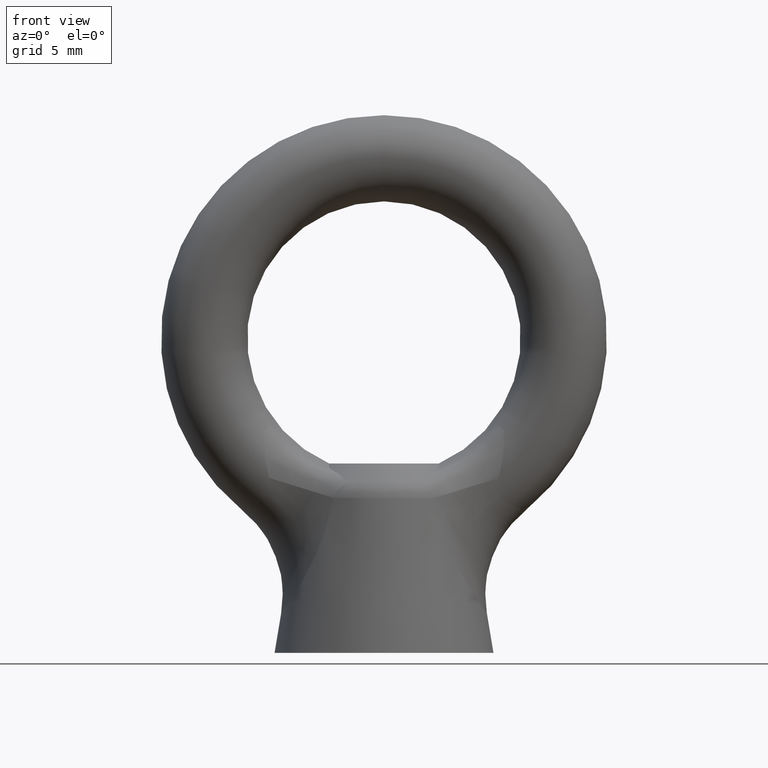
[diagram: clean part render]
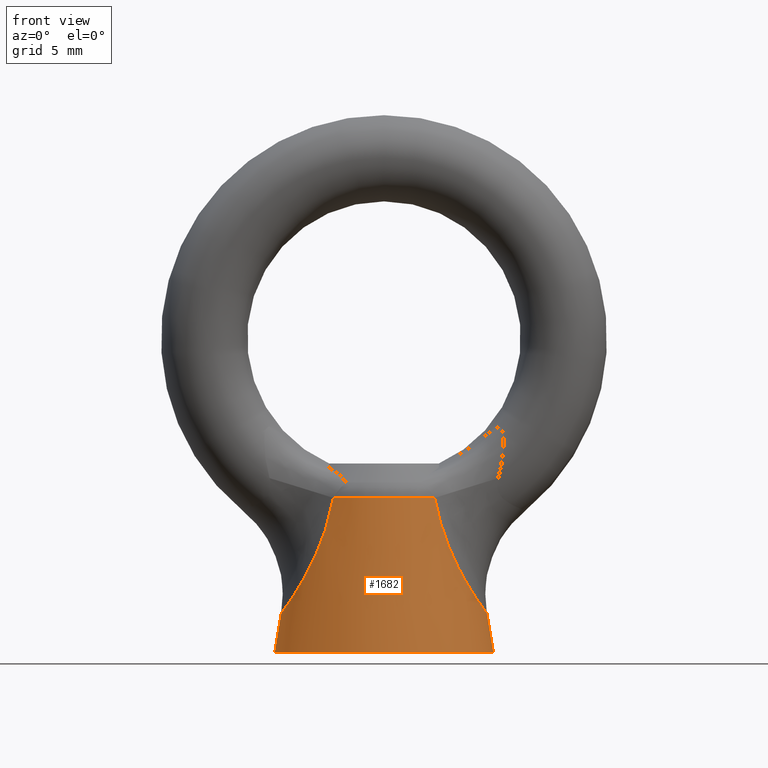
[diagram: same view with one face highlighted and labeled with its STEP entity id]
A machine part, front view. The second image highlights one B-rep face of the part: STEP entity #1682.
In plain terms, the highlighted conical surface has half-angle 9.462 deg.
Its self-contained STEP definition (entity closure, byte-faithful):
#94 = CARTESIAN_POINT ( 'NONE',  ( 3.700336161198615000, -4.866101749965079800, -11.67933981912971900 ) ) ;
#95 = CARTESIAN_POINT ( 'NONE',  ( 3.700336161198615000, -4.866101749965079800, -11.67933981912971900 ) ) ;
#96 = CARTESIAN_POINT ( 'NONE',  ( 3.791080510761447800, -4.897659638866545400, -12.15962412997844300 ) ) ;
#97 = CARTESIAN_POINT ( 'NONE',  ( 3.897948798332467200, -4.915433139214664000, -12.63581857763769800 ) ) ;
#98 = CARTESIAN_POINT ( 'NONE',  ( 4.148983107610034100, -4.913016417030344300, -13.57877150178362100 ) ) ;
#99 = CARTESIAN_POINT ( 'NONE',  ( 4.293832980109333300, -4.892688106765014300, -14.04741552049485500 ) ) ;
#100 = CARTESIAN_POINT ( 'NONE',  ( 4.618975746002725200, -4.801536893255710800, -14.96517377195020500 ) ) ;
#101 = CARTESIAN_POINT ( 'NONE',  ( 4.798601422195375200, -4.731125378629794700, -15.41306983158899500 ) ) ;
#102 = CARTESIAN_POINT ( 'NONE',  ( 5.187444715281709600, -4.525712549269332600, -16.28621154208027700 ) ) ;
#103 = CARTESIAN_POINT ( 'NONE',  ( 5.396503009544639800, -4.390439604083895600, -16.71053500868491400 ) ) ;
#104 = CARTESIAN_POINT ( 'NONE',  ( 5.717409407806754600, -4.130460136556911800, -17.31241303120011600 ) ) ;
#244 = CARTESIAN_POINT ( 'NONE',  ( -6.472111483679706000, -3.304312794107324700, -18.58721283963956600 ) ) ;
#245 = CARTESIAN_POINT ( 'NONE',  ( -6.677490107226547300, -2.998243480978921600, -18.90471114148681100 ) ) ;
#246 = CARTESIAN_POINT ( 'NONE',  ( -6.966462522931490000, -2.471127193186175100, -19.33403024834572600 ) ) ;
#247 = CARTESIAN_POINT ( 'NONE',  ( -6.778014815908657700, -2.830895693655485900, -19.05601187799507600 ) ) ;
#1655 = CARTESIAN_POINT ( 'NONE',  ( -7.210750658609040200, -1.874143635568104900, -19.68300334612416300 ) ) ;
#1656 = CARTESIAN_POINT ( 'NONE',  ( -7.280948999064633200, -1.657070340402333000, -19.78094130287158600 ) ) ;
#1657 = CARTESIAN_POINT ( 'NONE',  ( -7.053713821390386100, -2.280314914314785800, -19.45982852783784300 ) ) ;
#1658 = CARTESIAN_POINT ( 'NONE',  ( 7.440154740274011600, -0.9764553683088964500, -20.00018151817190700 ) ) ;
#1659 = CARTESIAN_POINT ( 'NONE',  ( 7.501573110524824500, -0.4946239260969532700, -20.08365726245855100 ) ) ;
#1660 = CARTESIAN_POINT ( 'NONE',  ( -7.441595080748321300, -0.9674330948542668700, -20.00214363067909300 ) ) ;
#1661 = CARTESIAN_POINT ( 'NONE',  ( -7.396325063362581000, -1.204143901561611600, -19.94042925631535500 ) ) ;
#1662 = CARTESIAN_POINT ( 'NONE',  ( 7.058717856527840300, -2.295126283549897600, -19.47015036336722100 ) ) ;
#1663 = CARTESIAN_POINT ( 'NONE',  ( 7.224805527430165200, -1.877313102086365600, -19.70332997826474800 ) ) ;
#1664 = CARTESIAN_POINT ( 'NONE',  ( -7.517523914658711200, -0.2469037410574205800, -20.10515167080067300 ) ) ;
#1665 = CARTESIAN_POINT ( 'NONE',  ( 7.517523914658711200, -0.2467236879976237300, -20.10515167080066900 ) ) ;
#1666 = CARTESIAN_POINT ( 'NONE',  ( -7.501905173004672600, -0.4896739786798432500, -20.08410394743090400 ) ) ;
#1667 = CARTESIAN_POINT ( 'NONE',  ( 7.395374059738717400, -1.207955613047939600, -19.93911587342264000 ) ) ;
#1668 = CARTESIAN_POINT ( 'NONE',  ( -7.517523914658708500, -1.503601632598788600E-015, -20.10515167080066900 ) ) ;
#1669 = CARTESIAN_POINT ( 'NONE',  ( 6.478098112501170300, -3.309688445053397200, -18.60200361946352400 ) ) ;
#1670 = CARTESIAN_POINT ( 'NONE',  ( 6.154707890606448300, -3.699359780974263800, -18.07402216976051100 ) ) ;
#1671 = CARTESIAN_POINT ( 'NONE',  ( 6.685026712302424700, -3.008295300323532700, -18.91881067202624700 ) ) ;
#1672 = CARTESIAN_POINT ( 'NONE',  ( 5.825879783987344000, -4.034098607246857400, -17.50794511143864100 ) ) ;
#1673 = CARTESIAN_POINT ( 'NONE',  ( 6.044247045159932200, -3.818924313034897500, -17.88831239793630300 ) ) ;
#1674 = B_SPLINE_CURVE_WITH_KNOTS ( 'NONE', 3,
 ( #1857, #1665, #1659, #1658, #1667, #1663, #1662, #1671, #1669, #1670, #1673, #1672, #104, #103, #102, #101, #100, #99, #98, #97, #96, #95 ),
 .UNSPECIFIED., .F., .F.,
 ( 4, 2, 2, 2, 2, 2, 2, 2, 2, 2, 4 ),
 ( 0.01175374713186020500, 0.01248782061828869100, 0.01322189410471717700, 0.01469004107757414800, 0.01615818805043112100, 0.01689226153685960100, 0.01762633502328808000, 0.01909448199614503400, 0.02056262896900198600, 0.02203077594185893700, 0.02349892291471588800 ),
 .UNSPECIFIED. ) ;
#1675 = DIRECTION ( 'NONE',  ( -1.000000000000000000, 0.0000000000000000000, 0.0000000000000000000 ) ) ;
#1676 = DIRECTION ( 'NONE',  ( 0.0000000000000000000, 0.0000000000000000000, -1.000000000000000000 ) ) ;
#1677 = AXIS2_PLACEMENT_3D ( 'NONE', #1679, #1676, #1675 ) ;
#1678 = CONICAL_SURFACE ( 'NONE', #1677, 8.000000000000000000, 0.1651491357972913500 ) ;
#1679 = CARTESIAN_POINT ( 'NONE',  ( 0.0000000000000000000, 0.0000000000000000000, -23.00000000000000000 ) ) ;
#1680 = FACE_OUTER_BOUND ( 'NONE', #1683, .T. ) ;
#1681 = EDGE_CURVE ( 'NONE', #1801, #1826, #1863, .T. ) ;
#1682 = ADVANCED_FACE ( 'NONE', ( #1680 ), #1678, .T. ) ;
#1683 = EDGE_LOOP ( 'NONE', ( #1686, #1771, #1687, #1798, #1800, #1797 ) ) ;
#1684 = EDGE_CURVE ( 'NONE', #1817, #1685, #1674, .T. ) ;
#1685 = VERTEX_POINT ( 'NONE', #94 ) ;
#1686 = ORIENTED_EDGE ( 'NONE', *, *, #1819, .F. ) ;
#1687 = ORIENTED_EDGE ( 'NONE', *, *, #1799, .T. ) ;
#1771 = ORIENTED_EDGE ( 'NONE', *, *, #1684, .T. ) ;
#1792 = EDGE_CURVE ( 'NONE', #1820, #1823, #5885, .T. ) ;
#1797 = ORIENTED_EDGE ( 'NONE', *, *, #1792, .F. ) ;
#1798 = ORIENTED_EDGE ( 'NONE', *, *, #1681, .T. ) ;
#1799 = EDGE_CURVE ( 'NONE', #1685, #1801, #5867, .T. ) ;
#1800 = ORIENTED_EDGE ( 'NONE', *, *, #1825, .T. ) ;
#1801 = VERTEX_POINT ( 'NONE', #5868 ) ;
#1817 = VERTEX_POINT ( 'NONE', #5825 ) ;
#1819 = EDGE_CURVE ( 'NONE', #1817, #1820, #5824, .T. ) ;
#1820 = VERTEX_POINT ( 'NONE', #5820 ) ;
#1823 = VERTEX_POINT ( 'NONE', #5814 ) ;
#1825 = EDGE_CURVE ( 'NONE', #1826, #1823, #5813, .T. ) ;
#1826 = VERTEX_POINT ( 'NONE', #5809 ) ;
#1847 = CARTESIAN_POINT ( 'NONE',  ( -6.366539068024015300, -3.444367053398833100, -18.41996780035326600 ) ) ;
#1848 = CARTESIAN_POINT ( 'NONE',  ( -6.152178041795213700, -3.702145798932372500, -18.06978832718002100 ) ) ;
#1849 = CARTESIAN_POINT ( 'NONE',  ( -6.043378843833973100, -3.819846822158457800, -17.88684184848960300 ) ) ;
#1850 = CARTESIAN_POINT ( 'NONE',  ( -5.824666726059790600, -4.035226284478953900, -17.50578997964026600 ) ) ;
#1851 = CARTESIAN_POINT ( 'NONE',  ( -5.714769667056117400, -4.132749051451857400, -17.30760154364253000 ) ) ;
#1852 = CARTESIAN_POINT ( 'NONE',  ( -5.393202544473429500, -4.392806641705561800, -16.70406015439561600 ) ) ;
#1853 = CARTESIAN_POINT ( 'NONE',  ( -5.187159269835483100, -4.525795571213613800, -16.28544955644791900 ) ) ;
#1854 = CARTESIAN_POINT ( 'NONE',  ( -4.800484633770651900, -4.730198031142041500, -15.41741907769867100 ) ) ;
#1855 = CARTESIAN_POINT ( 'NONE',  ( -4.619040008471421800, -4.801499758431638100, -14.96529983965637800 ) ) ;
#1856 = CARTESIAN_POINT ( 'NONE',  ( -4.294227505106910300, -4.892596597149140100, -14.04858436270725300 ) ) ;
#1857 = CARTESIAN_POINT ( 'NONE',  ( 7.517523914658708500, 1.590384828626300800E-015, -20.10515167080066900 ) ) ;
#1859 = CARTESIAN_POINT ( 'NONE',  ( -4.150223969260143700, -4.912910429053725100, -13.58306356479328900 ) ) ;
#1860 = CARTESIAN_POINT ( 'NONE',  ( -3.898570865671860700, -4.915520498895909400, -12.63852145891326700 ) ) ;
#1861 = CARTESIAN_POINT ( 'NONE',  ( -3.791118294241520500, -4.897672778713544300, -12.15982410730806700 ) ) ;
#1862 = CARTESIAN_POINT ( 'NONE',  ( -3.700336161198615000, -4.866101749965079800, -11.67933981912971900 ) ) ;
#1863 = B_SPLINE_CURVE_WITH_KNOTS ( 'NONE', 3,
 ( #1862, #1861, #1860, #1859, #1856, #1855, #1854, #1853, #1852, #1851, #1850, #1849, #1848, #1847, #244, #245, #247, #246, #1657, #1655, #1656, #1661, #1660, #1666, #1664, #1668 ),
 .UNSPECIFIED., .F., .F.,
 ( 4, 2, 2, 2, 2, 2, 2, 2, 2, 2, 2, 2, 4 ),
 ( 0.0000000000000000000, 0.001469218391482524800, 0.002938436782965049600, 0.004407655174447574300, 0.005876873565930099100, 0.006611482761671361500, 0.007346091957412623900, 0.008080701153153886300, 0.008815310348895148700, 0.009549919544636411100, 0.01028452874037767300, 0.01101913793611893600, 0.01175374713186019800 ),
 .UNSPECIFIED. ) ;
#5809 = CARTESIAN_POINT ( 'NONE',  ( -7.517523914658708500, -1.503601632598788600E-015, -20.10515167080066900 ) ) ;
#5810 = DIRECTION ( 'NONE',  ( -0.1643994394512150700, 0.0000000000000000000, -0.9863938484743941500 ) ) ;
#5811 = VECTOR ( 'NONE', #5810, 1000.000000000000200 ) ;
#5812 = CARTESIAN_POINT ( 'NONE',  ( -8.000000000000000000, 0.0000000000000000000, -23.00000000000000000 ) ) ;
#5813 = LINE ( 'NONE', #5812, #5811 ) ;
#5814 = CARTESIAN_POINT ( 'NONE',  ( -8.000000000000000000, 0.0000000000000000000, -23.00000000000000000 ) ) ;
#5820 = CARTESIAN_POINT ( 'NONE',  ( 8.000000000000000000, 9.796850830579018100E-016, -23.00000000000000000 ) ) ;
#5821 = DIRECTION ( 'NONE',  ( 0.1643994394512150700, 2.013245981167951400E-017, -0.9863938484743941500 ) ) ;
#5822 = VECTOR ( 'NONE', #5821, 1000.000000000000200 ) ;
#5823 = CARTESIAN_POINT ( 'NONE',  ( 8.000000000000000000, 9.796850830579018100E-016, -23.00000000000000000 ) ) ;
#5824 = LINE ( 'NONE', #5823, #5822 ) ;
#5825 = CARTESIAN_POINT ( 'NONE',  ( 7.517523914658708500, 1.590384828626300800E-015, -20.10515167080066900 ) ) ;
#5863 = DIRECTION ( 'NONE',  ( 1.000000000000000000, 0.0000000000000000000, 0.0000000000000000000 ) ) ;
#5864 = DIRECTION ( 'NONE',  ( 0.0000000000000000000, 0.0000000000000000000, -1.000000000000000000 ) ) ;
#5865 = CARTESIAN_POINT ( 'NONE',  ( 0.0000000000000000000, 0.0000000000000000000, -11.67933981912971900 ) ) ;
#5866 = AXIS2_PLACEMENT_3D ( 'NONE', #5865, #5864, #5863 ) ;
#5867 = CIRCLE ( 'NONE', #5866, 6.113217969849210400 ) ;
#5868 = CARTESIAN_POINT ( 'NONE',  ( -3.700336161198615000, -4.866101749965079800, -11.67933981912971900 ) ) ;
#5881 = DIRECTION ( 'NONE',  ( -1.000000000000000000, 0.0000000000000000000, 0.0000000000000000000 ) ) ;
#5882 = DIRECTION ( 'NONE',  ( 0.0000000000000000000, 0.0000000000000000000, -1.000000000000000000 ) ) ;
#5883 = CARTESIAN_POINT ( 'NONE',  ( 0.0000000000000000000, 0.0000000000000000000, -23.00000000000000000 ) ) ;
#5884 = AXIS2_PLACEMENT_3D ( 'NONE', #5883, #5882, #5881 ) ;
#5885 = CIRCLE ( 'NONE', #5884, 8.000000000000000000 ) ;